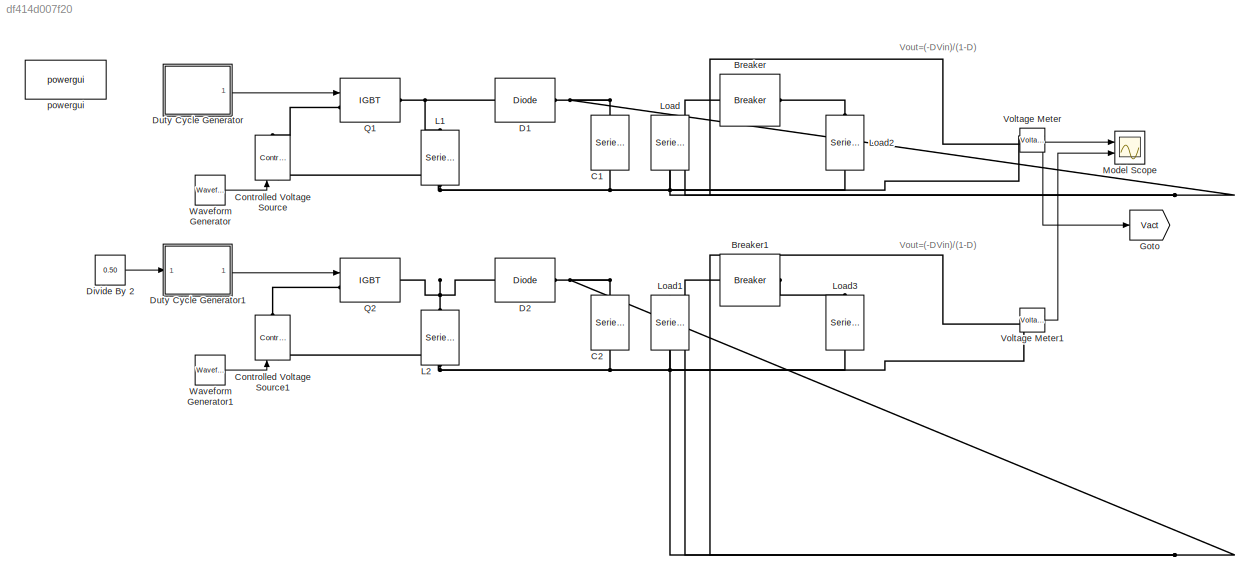
MODEL slx_df414d007f20
KIND model
CONFIG AbsTol = auto
CONFIG EnableMultiTasking = off
CONFIG FixedStep = auto
CONFIG MaxStep = auto
CONFIG MinStep = auto
CONFIG RelTol = 1e-3
CONFIG SampleTimeConstraint = Unconstrained
CONFIG Solver = VariableStepAuto
CONFIG SolverName = VariableStepAuto
CONFIG StartTime = 0.0
CONFIG StopTime = 10
BLOCK [Reference] Breaker  REF=powerlib/Elements/Breaker
  Ports = [0, 0, 0, 0, 0, 1, 1]
  SourceBlock = powerlib/Elements/Breaker
  SourceProductBaseCode = PS
  SourceType = Breaker
BLOCK [Reference] Breaker1  REF=powerlib/Elements/Breaker
  Ports = [0, 0, 0, 0, 0, 1, 1]
  SourceBlock = powerlib/Elements/Breaker
  SourceProductBaseCode = PS
  SourceType = Breaker
BLOCK [Reference] C1  REF=powerlib/Elements/Series RLC Branch
  NameLocation = right
  Ports = [0, 0, 0, 0, 0, 1, 1]
  SourceBlock = powerlib/Elements/Series RLC Branch
  SourceProductBaseCode = PS
  SourceType = Series RLC Branch
BLOCK [Reference] C2  REF=powerlib/Elements/Series RLC Branch
  NameLocation = right
  Ports = [0, 0, 0, 0, 0, 1, 1]
  SourceBlock = powerlib/Elements/Series RLC Branch
  SourceProductBaseCode = PS
  SourceType = Series RLC Branch
BLOCK [Reference] Controlled Voltage Source  REF=powerlib/Electrical
Sources/Controlled Voltage Source
  NameLocation = right
  Ports = [1, 0, 0, 0, 0, 1, 1]
  SourceBlock = powerlib/Electrical\nSources/Controlled Voltage Source
  SourceProductBaseCode = PS
  SourceType = Controlled Voltage Source
BLOCK [Reference] Controlled Voltage Source1  REF=powerlib/Electrical
Sources/Controlled Voltage Source
  NameLocation = right
  Ports = [1, 0, 0, 0, 0, 1, 1]
  SourceBlock = powerlib/Electrical\nSources/Controlled Voltage Source
  SourceProductBaseCode = PS
  SourceType = Controlled Voltage Source
BLOCK [Reference] D1  REF=powerlib/Power
Electronics/Diode
  Ports = [0, 0, 0, 0, 0, 1, 1]
  SourceBlock = powerlib/Power\nElectronics/Diode
  SourceProductBaseCode = PS
  SourceType = Diode
BLOCK [Reference] D2  REF=powerlib/Power
Electronics/Diode
  Ports = [0, 0, 0, 0, 0, 1, 1]
  SourceBlock = powerlib/Power\nElectronics/Diode
  SourceProductBaseCode = PS
  SourceType = Diode
BLOCK [Constant] Divide By 2
  Value = 0.50
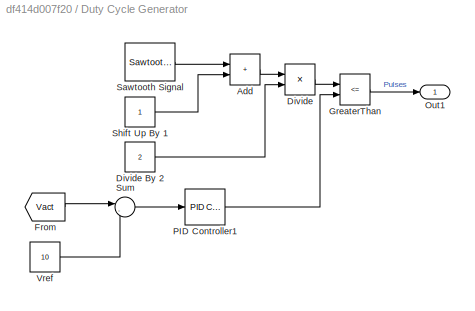
BLOCK [SubSystem] Duty Cycle Generator
  Ports = [0, 1]
  RequestExecContextInheritance = off
BLOCK [Sum] Duty Cycle Generator/Add
  IconShape = rectangular
  Ports = [2, 1]
BLOCK [Product] Duty Cycle Generator/Divide
  Inputs = */
  Ports = [2, 1]
BLOCK [Constant] Duty Cycle Generator/Divide By 2
  Value = 2
BLOCK [From] Duty Cycle Generator/From
  GotoTag = Vact
  TagVisibility = global
BLOCK [RelationalOperator] Duty Cycle Generator/GreaterThan
  InputSameDT = off
  Operator = <=
  OutDataTypeStr = boolean
  Ports = [2, 1]
  RndMeth = Simplest
BLOCK [Outport] Duty Cycle Generator/Out1
  IconDisplay = Signal name
BLOCK [Reference] Duty Cycle Generator/PID Controller1  REF=simulink/Continuous/PID Controller
  Ports = [1, 1]
  SourceBlock = simulink/Continuous/PID Controller
  SourceProductBaseCode = SL
  SourceType = PID 1dof
BLOCK [Reference] Duty Cycle Generator/Sawtooth Signal  REF=powerlib_meascontrol/Pulse & Signal
Generators/Sawtooth
Generator
  Ports = [0, 1]
  SourceBlock = powerlib_meascontrol/Pulse & Signal\nGenerators/Sawtooth\nGenerator
  SourceProductBaseCode = PS
  SourceType = Sawtooth Generator
BLOCK [Constant] Duty Cycle Generator/Shift Up By 1
BLOCK [Sum] Duty Cycle Generator/Sum
  Inputs = |-+
  Ports = [2, 1]
BLOCK [Constant] Duty Cycle Generator/Vref
  Value = 10
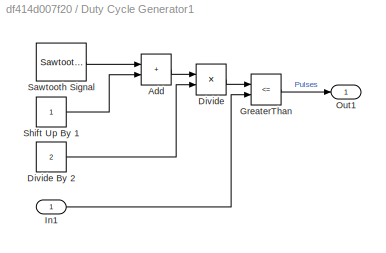
BLOCK [SubSystem] Duty Cycle Generator1
  Ports = [1, 1]
  RequestExecContextInheritance = off
BLOCK [Sum] Duty Cycle Generator1/Add
  IconShape = rectangular
  Ports = [2, 1]
BLOCK [Product] Duty Cycle Generator1/Divide
  Inputs = */
  Ports = [2, 1]
BLOCK [Constant] Duty Cycle Generator1/Divide By 2
  Value = 2
BLOCK [RelationalOperator] Duty Cycle Generator1/GreaterThan
  InputSameDT = off
  Operator = <=
  OutDataTypeStr = boolean
  Ports = [2, 1]
  RndMeth = Simplest
BLOCK [Inport] Duty Cycle Generator1/In1
BLOCK [Outport] Duty Cycle Generator1/Out1
  IconDisplay = Signal name
BLOCK [Reference] Duty Cycle Generator1/Sawtooth Signal  REF=powerlib_meascontrol/Pulse & Signal
Generators/Sawtooth
Generator
  Ports = [0, 1]
  SourceBlock = powerlib_meascontrol/Pulse & Signal\nGenerators/Sawtooth\nGenerator
  SourceProductBaseCode = PS
  SourceType = Sawtooth Generator
BLOCK [Constant] Duty Cycle Generator1/Shift Up By 1
BLOCK [Goto] Goto
  GotoTag = Vact
  TagVisibility = global
BLOCK [Reference] L1  REF=powerlib/Elements/Series RLC Branch
  NameLocation = left
  Ports = [0, 0, 0, 0, 0, 1, 1]
  SourceBlock = powerlib/Elements/Series RLC Branch
  SourceProductBaseCode = PS
  SourceType = Series RLC Branch
BLOCK [Reference] L2  REF=powerlib/Elements/Series RLC Branch
  NameLocation = left
  Ports = [0, 0, 0, 0, 0, 1, 1]
  SourceBlock = powerlib/Elements/Series RLC Branch
  SourceProductBaseCode = PS
  SourceType = Series RLC Branch
BLOCK [Reference] Load  REF=powerlib/Elements/Series RLC Branch
  NameLocation = right
  Ports = [0, 0, 0, 0, 0, 1, 1]
  SourceBlock = powerlib/Elements/Series RLC Branch
  SourceProductBaseCode = PS
  SourceType = Series RLC Branch
BLOCK [Reference] Load1  REF=powerlib/Elements/Series RLC Branch
  NameLocation = right
  Ports = [0, 0, 0, 0, 0, 1, 1]
  SourceBlock = powerlib/Elements/Series RLC Branch
  SourceProductBaseCode = PS
  SourceType = Series RLC Branch
BLOCK [Reference] Load2  REF=powerlib/Elements/Series RLC Branch
  NameLocation = right
  Ports = [0, 0, 0, 0, 0, 1, 1]
  SourceBlock = powerlib/Elements/Series RLC Branch
  SourceProductBaseCode = PS
  SourceType = Series RLC Branch
BLOCK [Reference] Load3  REF=powerlib/Elements/Series RLC Branch
  NameLocation = right
  Ports = [0, 0, 0, 0, 0, 1, 1]
  SourceBlock = powerlib/Elements/Series RLC Branch
  SourceProductBaseCode = PS
  SourceType = Series RLC Branch
BLOCK [Scope] Model Scope
  Floating = off
  NumInputPorts = 2
  Ports = [2]
  ScopeSpecificationString = Simulink.scopes.TimeScopeBlockCfg('CurrentConfiguration', extmgr.ConfigurationSet(extmgr.Configuration('Core','General UI',true),extmgr.Configuration('Core','Source UI',true),extmgr.Configuration('Sources','WiredSimulink',true),extmgr.Configuration('Visuals','Time Domain',true,'SerializedDisplays',{struct('MinYLimReal','-3.37956','MaxYLimReal','30.41563','YLabelReal','','MinYLimMag','0.00000','Max...<+1454ch>
BLOCK [Reference] Q1  REF=powerlib/Power
Electronics/IGBT
  Ports = [1, 0, 0, 0, 0, 1, 1]
  SourceBlock = powerlib/Power\nElectronics/IGBT
  SourceProductBaseCode = PS
  SourceType = IGBT
BLOCK [Reference] Q2  REF=powerlib/Power
Electronics/IGBT
  Ports = [1, 0, 0, 0, 0, 1, 1]
  SourceBlock = powerlib/Power\nElectronics/IGBT
  SourceProductBaseCode = PS
  SourceType = IGBT
BLOCK [Reference] Voltage Meter  REF=powerlib/Measurements/Voltage Measurement
  Ports = [0, 1, 0, 0, 0, 2]
  SourceBlock = powerlib/Measurements/Voltage Measurement
  SourceProductBaseCode = PS
  SourceType = Voltage Measurement
  UserDataPersistent = on
BLOCK [Reference] Voltage Meter1  REF=powerlib/Measurements/Voltage Measurement
  Ports = [0, 1, 0, 0, 0, 2]
  SourceBlock = powerlib/Measurements/Voltage Measurement
  SourceProductBaseCode = PS
  SourceType = Voltage Measurement
  UserDataPersistent = on
BLOCK [Reference] Waveform Generator  REF=simulink/Sources/Waveform
Generator
  Ports = [0, 1]
  SourceBlock = simulink/Sources/Waveform\nGenerator
  SourceProductBaseCode = SL
  SourceType = WaveformGenerator
BLOCK [Reference] Waveform Generator1  REF=simulink/Sources/Waveform
Generator
  Ports = [0, 1]
  SourceBlock = simulink/Sources/Waveform\nGenerator
  SourceProductBaseCode = SL
  SourceType = WaveformGenerator
BLOCK [Reference] powergui  REF=powerlib/powergui
  Ports = []
  Priority = 1
  SourceBlock = powerlib/powergui
  SourceProductBaseCode = PS
  SourceType = PSB option menu block
ANNOTATION (root): Vout=(-DVin)/(1-D)
LINE Divide By 2:1 -> Duty Cycle Generator1:1
LINE Duty Cycle Generator/Add:1 -> Duty Cycle Generator/Divide:1
LINE Duty Cycle Generator/Divide By 2:1 -> Duty Cycle Generator/Divide:2
LINE Duty Cycle Generator/Divide:1 -> Duty Cycle Generator/GreaterThan:1
LINE Duty Cycle Generator/From:1 -> Duty Cycle Generator/Sum:1
LINE Duty Cycle Generator/GreaterThan:1 -> Duty Cycle Generator/Out1:1
LINE Duty Cycle Generator/PID Controller1:1 -> Duty Cycle Generator/GreaterThan:2
LINE Duty Cycle Generator/Sawtooth Signal:1 -> Duty Cycle Generator/Add:1
LINE Duty Cycle Generator/Shift Up By 1:1 -> Duty Cycle Generator/Add:2
LINE Duty Cycle Generator/Sum:1 -> Duty Cycle Generator/PID Controller1:1
LINE Duty Cycle Generator/Vref:1 -> Duty Cycle Generator/Sum:2
LINE Duty Cycle Generator1/Add:1 -> Duty Cycle Generator1/Divide:1
LINE Duty Cycle Generator1/Divide By 2:1 -> Duty Cycle Generator1/Divide:2
LINE Duty Cycle Generator1/Divide:1 -> Duty Cycle Generator1/GreaterThan:1
LINE Duty Cycle Generator1/GreaterThan:1 -> Duty Cycle Generator1/Out1:1
LINE Duty Cycle Generator1/In1:1 -> Duty Cycle Generator1/GreaterThan:2
LINE Duty Cycle Generator1/Sawtooth Signal:1 -> Duty Cycle Generator1/Add:1
LINE Duty Cycle Generator1/Shift Up By 1:1 -> Duty Cycle Generator1/Add:2
LINE Duty Cycle Generator1:1 -> Q2:1
LINE Duty Cycle Generator:1 -> Q1:1
LINE Voltage Meter1:1 -> Model Scope:2
NET Voltage Meter:1 -> Goto:1, Model Scope:1
LINE Waveform Generator1:1 -> Controlled Voltage Source1:1
LINE Waveform Generator:1 -> Controlled Voltage Source:1
PNET net1: Breaker1:LConn1 -- C2:RConn1 -- D2:LConn1 -- Load1:RConn1 -- Voltage Meter1:LConn2
PLINE Breaker1:RConn1 -- Load3:RConn1
PNET net2: Breaker:LConn1 -- C1:RConn1 -- D1:LConn1 -- Load:RConn1 -- Voltage Meter:LConn2
PLINE Breaker:RConn1 -- Load2:RConn1
PNET net3: C1:LConn1 -- Controlled Voltage Source:LConn1 -- L1:RConn1 -- Load2:LConn1 -- Load:LConn1 -- Voltage Meter:LConn1
PNET net4: C2:LConn1 -- Controlled Voltage Source1:LConn1 -- L2:RConn1 -- Load1:LConn1 -- Load3:LConn1 -- Voltage Meter1:LConn1
PLINE Controlled Voltage Source1:RConn1 -- Q2:LConn1
PLINE Controlled Voltage Source:RConn1 -- Q1:LConn1
PNET net5: D1:RConn1 -- L1:LConn1 -- Q1:RConn1
PNET net6: D2:RConn1 -- L2:LConn1 -- Q2:RConn1
note: NET lines group one-source signal fan-out (src -> all destinations, sorted); 1:1 wires keep LINE; PNET lines group multi-terminal physical nets as a canonical sorted terminal list (undirected conserving connections); 2-terminal nets keep the pairwise PLINE form
